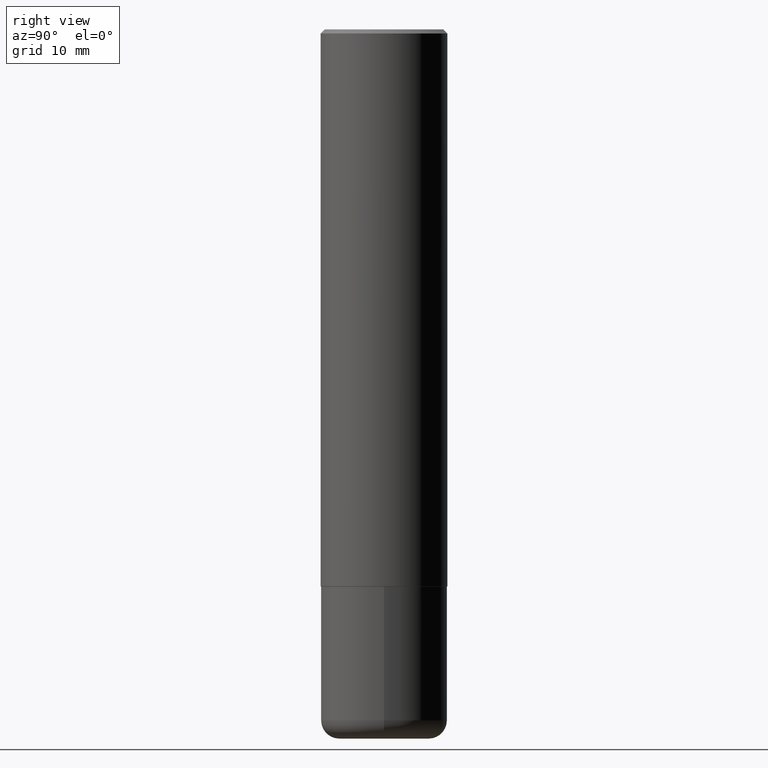
[diagram: clean part render]
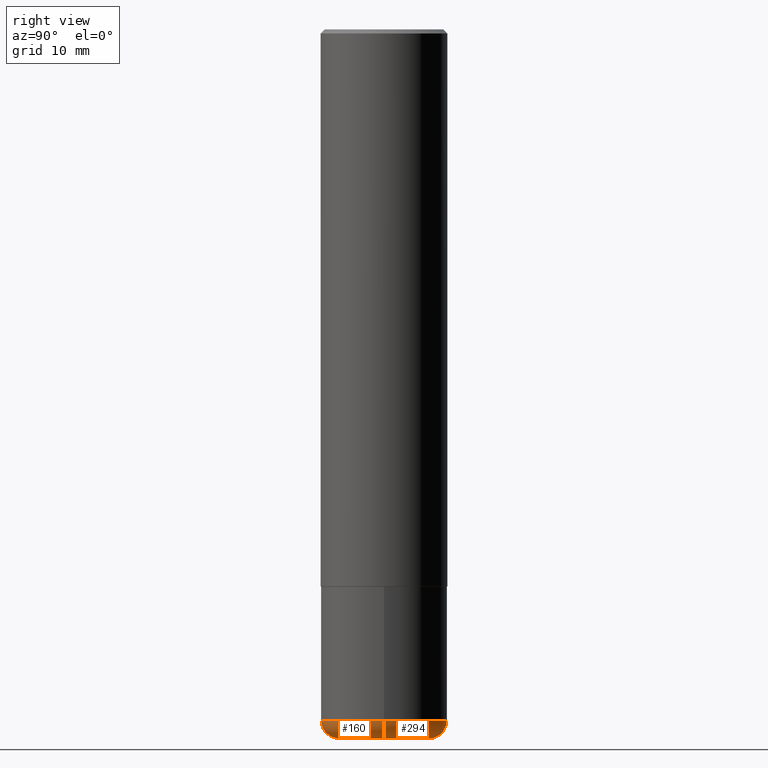
[diagram: same view with one multi-face feature highlighted, each face labeled with its STEP entity id]
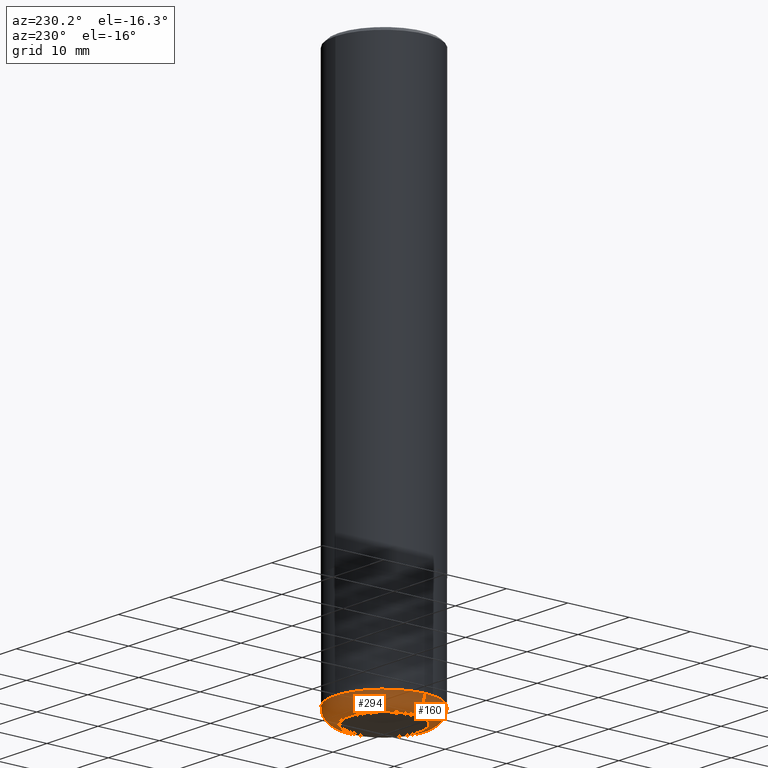
[diagram: same view with one multi-face feature highlighted, each face labeled with its STEP entity id]
A machine part, right view. The highlighted faces form ONE feature: a constant-radius fillet chain: 2 tangent blend faces with common blend radius 2.286 mm. The faces share edges in the B-rep.
A second angle (auxiliary view) of the same feature is appended — it is thin or edge-on in the first view.
Their STEP definitions:
[1] entity #294 (Torus):
#4 = VERTEX_POINT ( 'NONE', #186 ) ;
#36 = DIRECTION ( 'NONE',  ( 1.000000000000000000, -6.982962677686273810E-15, 0.000000000000000000 ) ) ;
#54 = DIRECTION ( 'NONE',  ( 7.105427357601001859E-15, 1.000000000000000000, -3.491481338843145583E-15 ) ) ;
#59 = CARTESIAN_POINT ( 'NONE',  ( -0.2225000000000000033, -1.016236620754480236E-14, -3.499999999999999112 ) ) ;
#61 = CIRCLE ( 'NONE', #118, 0.08999999999999964972 ) ;
#68 = CARTESIAN_POINT ( 'NONE',  ( 8.339048629091315302E-29, -1.190595136545512608E-14, -3.410000000000000142 ) ) ;
#71 = DIRECTION ( 'NONE',  ( -2.445468806185136597E-29, 3.491481338843145583E-15, 1.000000000000000000 ) ) ;
#95 = AXIS2_PLACEMENT_3D ( 'NONE', #68, #71, #332 ) ;
#115 = VERTEX_POINT ( 'NONE', #257 ) ;
#118 = AXIS2_PLACEMENT_3D ( 'NONE', #401, #360, #36 ) ;
#119 = ORIENTED_EDGE ( 'NONE', *, *, #144, .T. ) ;
#127 = CARTESIAN_POINT ( 'NONE',  ( -0.2225000000000000033, -1.032499377838890215E-14, -3.410000000000000142 ) ) ;
#143 = ORIENTED_EDGE ( 'NONE', *, *, #189, .F. ) ;
#144 = EDGE_CURVE ( 'NONE', #378, #310, #239, .T. ) ;
#146 = CIRCLE ( 'NONE', #183, 0.2225000000000000033 ) ;
#168 = DIRECTION ( 'NONE',  ( -2.445468806185136597E-29, 3.491481338843145583E-15, 1.000000000000000000 ) ) ;
#172 = AXIS2_PLACEMENT_3D ( 'NONE', #200, #168, #326 ) ;
#183 = AXIS2_PLACEMENT_3D ( 'NONE', #357, #320, #194 ) ;
#186 = CARTESIAN_POINT ( 'NONE',  ( 0.3124999999999998890, -1.408812720223208442E-14, -3.410000000000000142 ) ) ;
#187 = CARTESIAN_POINT ( 'NONE',  ( -0.3124999999999998890, -9.685505316204812997E-15, -3.410000000000000142 ) ) ;
#189 = EDGE_CURVE ( 'NONE', #115, #4, #61, .T. ) ;
#194 = DIRECTION ( 'NONE',  ( 1.000000000000000000, -6.982962677686269077E-15, 0.000000000000000000 ) ) ;
#200 = CARTESIAN_POINT ( 'NONE',  ( 8.339048629091315302E-29, -1.190595136545512608E-14, -3.410000000000000142 ) ) ;
#213 = EDGE_CURVE ( 'NONE', #4, #310, #355, .T. ) ;
#239 = CIRCLE ( 'NONE', #299, 0.08999999999999964972 ) ;
#241 = EDGE_LOOP ( 'NONE', ( #312, #119, #410, #143 ) ) ;
#257 = CARTESIAN_POINT ( 'NONE',  ( 0.2225000000000000033, -1.377389388173620116E-14, -3.499999999999999112 ) ) ;
#259 = DIRECTION ( 'NONE',  ( -1.000000000000000000, 7.105427357600996337E-15, 0.000000000000000000 ) ) ;
#267 = FACE_OUTER_BOUND ( 'NONE', #241, .T. ) ;
#284 = TOROIDAL_SURFACE ( 'NONE', #95, 0.2225000000000000033, 0.08999999999999964972 ) ;
#294 = ADVANCED_FACE ( 'NONE', ( #267 ), #284, .T. ) ;
#299 = AXIS2_PLACEMENT_3D ( 'NONE', #127, #54, #259 ) ;
#310 = VERTEX_POINT ( 'NONE', #187 ) ;
#312 = ORIENTED_EDGE ( 'NONE', *, *, #314, .T. ) ;
#314 = EDGE_CURVE ( 'NONE', #115, #378, #146, .T. ) ;
#320 = DIRECTION ( 'NONE',  ( -2.445468806185136597E-29, 3.491481338843145583E-15, 1.000000000000000000 ) ) ;
#326 = DIRECTION ( 'NONE',  ( 1.000000000000000000, -6.982962677686269077E-15, 0.000000000000000000 ) ) ;
#332 = DIRECTION ( 'NONE',  ( 1.000000000000000000, -6.982962677686264344E-15, 4.883557194083111780E-29 ) ) ;
#355 = CIRCLE ( 'NONE', #172, 0.3125000000000000000 ) ;
#357 = CARTESIAN_POINT ( 'NONE',  ( 8.559140821647976968E-29, -1.222018468595100619E-14, -3.499999999999999112 ) ) ;
#360 = DIRECTION ( 'NONE',  ( -6.982962677686266711E-15, -1.000000000000000000, 3.491481338843145583E-15 ) ) ;
#378 = VERTEX_POINT ( 'NONE', #59 ) ;
#401 = CARTESIAN_POINT ( 'NONE',  ( 0.2225000000000000033, -1.345966056124032105E-14, -3.410000000000000142 ) ) ;
#410 = ORIENTED_EDGE ( 'NONE', *, *, #213, .F. ) ;
[2] entity #160 (Torus):
#4 = VERTEX_POINT ( 'NONE', #186 ) ;
#36 = DIRECTION ( 'NONE',  ( 1.000000000000000000, -6.982962677686273810E-15, 0.000000000000000000 ) ) ;
#54 = DIRECTION ( 'NONE',  ( 7.105427357601001859E-15, 1.000000000000000000, -3.491481338843145583E-15 ) ) ;
#59 = CARTESIAN_POINT ( 'NONE',  ( -0.2225000000000000033, -1.016236620754480236E-14, -3.499999999999999112 ) ) ;
#61 = CIRCLE ( 'NONE', #118, 0.08999999999999964972 ) ;
#80 = ORIENTED_EDGE ( 'NONE', *, *, #292, .F. ) ;
#115 = VERTEX_POINT ( 'NONE', #257 ) ;
#118 = AXIS2_PLACEMENT_3D ( 'NONE', #401, #360, #36 ) ;
#127 = CARTESIAN_POINT ( 'NONE',  ( -0.2225000000000000033, -1.032499377838890215E-14, -3.410000000000000142 ) ) ;
#140 = CARTESIAN_POINT ( 'NONE',  ( 8.339048629091315302E-29, -1.190595136545512608E-14, -3.410000000000000142 ) ) ;
#144 = EDGE_CURVE ( 'NONE', #378, #310, #239, .T. ) ;
#160 = ADVANCED_FACE ( 'NONE', ( #195 ), #249, .T. ) ;
#167 = CARTESIAN_POINT ( 'NONE',  ( 8.339048629091315302E-29, -1.190595136545512608E-14, -3.410000000000000142 ) ) ;
#170 = DIRECTION ( 'NONE',  ( 1.000000000000000000, -6.982962677686269077E-15, 0.000000000000000000 ) ) ;
#173 = ORIENTED_EDGE ( 'NONE', *, *, #144, .F. ) ;
#186 = CARTESIAN_POINT ( 'NONE',  ( 0.3124999999999998890, -1.408812720223208442E-14, -3.410000000000000142 ) ) ;
#187 = CARTESIAN_POINT ( 'NONE',  ( -0.3124999999999998890, -9.685505316204812997E-15, -3.410000000000000142 ) ) ;
#189 = EDGE_CURVE ( 'NONE', #115, #4, #61, .T. ) ;
#193 = ORIENTED_EDGE ( 'NONE', *, *, #282, .T. ) ;
#195 = FACE_OUTER_BOUND ( 'NONE', #383, .T. ) ;
#222 = AXIS2_PLACEMENT_3D ( 'NONE', #399, #235, #365 ) ;
#228 = DIRECTION ( 'NONE',  ( -2.445468806185136597E-29, 3.491481338843145583E-15, 1.000000000000000000 ) ) ;
#235 = DIRECTION ( 'NONE',  ( -2.445468806185136597E-29, 3.491481338843145583E-15, 1.000000000000000000 ) ) ;
#239 = CIRCLE ( 'NONE', #299, 0.08999999999999964972 ) ;
#246 = ORIENTED_EDGE ( 'NONE', *, *, #189, .T. ) ;
#249 = TOROIDAL_SURFACE ( 'NONE', #305, 0.2225000000000000033, 0.08999999999999964972 ) ;
#257 = CARTESIAN_POINT ( 'NONE',  ( 0.2225000000000000033, -1.377389388173620116E-14, -3.499999999999999112 ) ) ;
#259 = DIRECTION ( 'NONE',  ( -1.000000000000000000, 7.105427357600996337E-15, 0.000000000000000000 ) ) ;
#282 = EDGE_CURVE ( 'NONE', #378, #115, #409, .T. ) ;
#292 = EDGE_CURVE ( 'NONE', #310, #4, #394, .T. ) ;
#299 = AXIS2_PLACEMENT_3D ( 'NONE', #127, #54, #259 ) ;
#302 = DIRECTION ( 'NONE',  ( -2.445468806185136597E-29, 3.491481338843145583E-15, 1.000000000000000000 ) ) ;
#305 = AXIS2_PLACEMENT_3D ( 'NONE', #140, #228, #331 ) ;
#310 = VERTEX_POINT ( 'NONE', #187 ) ;
#331 = DIRECTION ( 'NONE',  ( 1.000000000000000000, -6.982962677686264344E-15, 4.883557194083111780E-29 ) ) ;
#360 = DIRECTION ( 'NONE',  ( -6.982962677686266711E-15, -1.000000000000000000, 3.491481338843145583E-15 ) ) ;
#365 = DIRECTION ( 'NONE',  ( 1.000000000000000000, -6.982962677686269077E-15, 0.000000000000000000 ) ) ;
#378 = VERTEX_POINT ( 'NONE', #59 ) ;
#383 = EDGE_LOOP ( 'NONE', ( #173, #193, #246, #80 ) ) ;
#394 = CIRCLE ( 'NONE', #404, 0.3125000000000000000 ) ;
#399 = CARTESIAN_POINT ( 'NONE',  ( 8.559140821647976968E-29, -1.222018468595100619E-14, -3.499999999999999112 ) ) ;
#401 = CARTESIAN_POINT ( 'NONE',  ( 0.2225000000000000033, -1.345966056124032105E-14, -3.410000000000000142 ) ) ;
#404 = AXIS2_PLACEMENT_3D ( 'NONE', #167, #302, #170 ) ;
#409 = CIRCLE ( 'NONE', #222, 0.2225000000000000033 ) ;